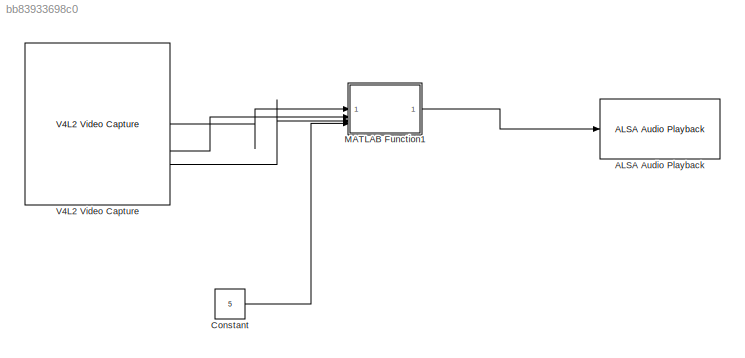
MODEL slx_bb83933698c0
KIND model
CONFIG AbsTol = auto
CONFIG EnableMultiTasking = on
CONFIG FixedStep = auto
CONFIG MaxStep = auto
CONFIG MinStep = auto
CONFIG RelTol = 1e-3
CONFIG SampleTimeConstraint = Unconstrained
CONFIG SolverName = FixedStepAuto
CONFIG StartTime = 0.0
CONFIG StopTime = 10.0
BLOCK [Reference] ALSA Audio Playback  REF=raspberrypiAVlib/ALSA Audio Playback
  SourceBlock = raspberrypiAVlib/ALSA Audio Playback
  SourceType = codertarget.raspi.internal.RaspiALSAAudioPlayback
BLOCK [Constant] Constant
  Value = 5
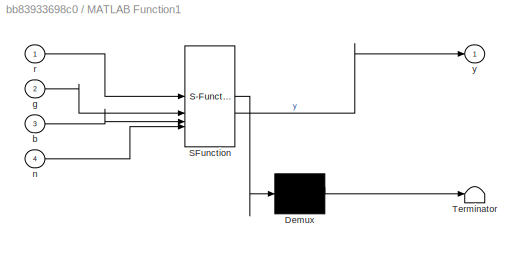
BLOCK [SubSystem] MATLAB Function1
  ErrorFcn = Stateflow.Translate.translate
  LibrarySourceBlock = simulink/User-Defined\nFunctions/MATLAB Function
  PermitHierarchicalResolution = ExplicitOnly
  SFBlockType = MATLAB Function
  TreatAsAtomicUnit = on
BLOCK [Demux] MATLAB Function1/ Demux 
  Outputs = 1
BLOCK [S-Function] MATLAB Function1/ SFunction 
  EnableBusSupport = on
  FunctionName = sf_sfun
  PortCounts = [4 2]
  SFcnIsStateOwnerBlock = off
  SFunctionDeploymentMode = off
  Tag = Stateflow S-Function 1
BLOCK [Terminator] MATLAB Function1/ Terminator 
BLOCK [Inport] MATLAB Function1/b
  Port = 3
BLOCK [Inport] MATLAB Function1/g
  Port = 2
BLOCK [Inport] MATLAB Function1/n
  Port = 4
BLOCK [Inport] MATLAB Function1/r
BLOCK [Outport] MATLAB Function1/y
BLOCK [Reference] V4L2 Video Capture  REF=raspberrypiAVlib/V4L2 Video Capture
  SourceBlock = raspberrypiAVlib/V4L2 Video Capture
  SourceType = codertarget.raspi.internal.Raspiv4l2Capture
LINE Constant:1 -> MATLAB Function1:4
LINE MATLAB Function1:1 -> ALSA Audio Playback:1
LINE V4L2 Video Capture:1 -> MATLAB Function1:1
LINE V4L2 Video Capture:2 -> MATLAB Function1:2
LINE V4L2 Video Capture:3 -> MATLAB Function1:3
CHART MATLAB Function1 states=1 transitions=1
  STATE_LABEL 'eML_blk_kernel()'
  STATE_LABEL 'SCRIPT:\nfunction y =findsound2(r,g,b,n)\n    s = size(r);\n    rgb = zeros(s(1,1),s(1,2),3);\n    for l=1:s(1,1)\n        for c=1:s(1,2)\n            rgb(l,c,:) = [r(l,c) g(l,c) b(l,c)];\n        end\n    end\n    angle = trouverAngle(rgb, n);\n    w = pulsation(angle(1));\n    %t = linspace(0,10,10*int16(2*w));\n    t= linspace(0,10,100000);\n    y = int16(transpose(amplitude(angle(1)) * sin(w*t)));\nend\n\nfun...<+2392ch>'
CHART  states=0 transitions=0
